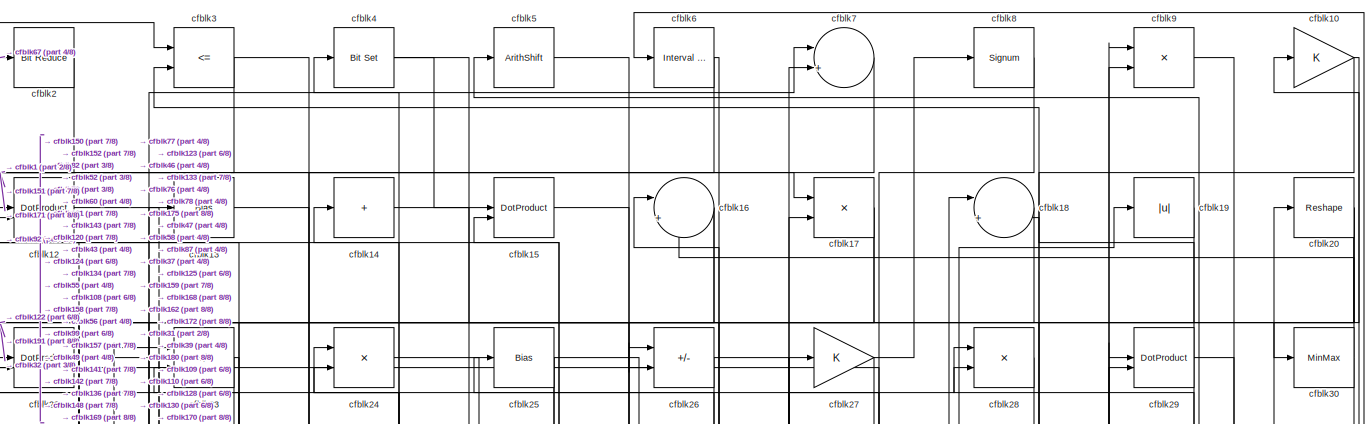
[diagram: root canvas - part 1/8, full width, top band]
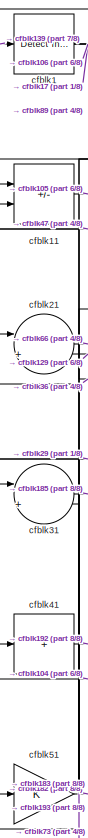
[diagram: root canvas - part 2/8, top left region]
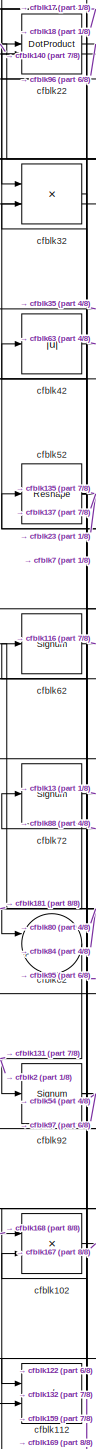
[diagram: root canvas - part 3/8, middle left region]
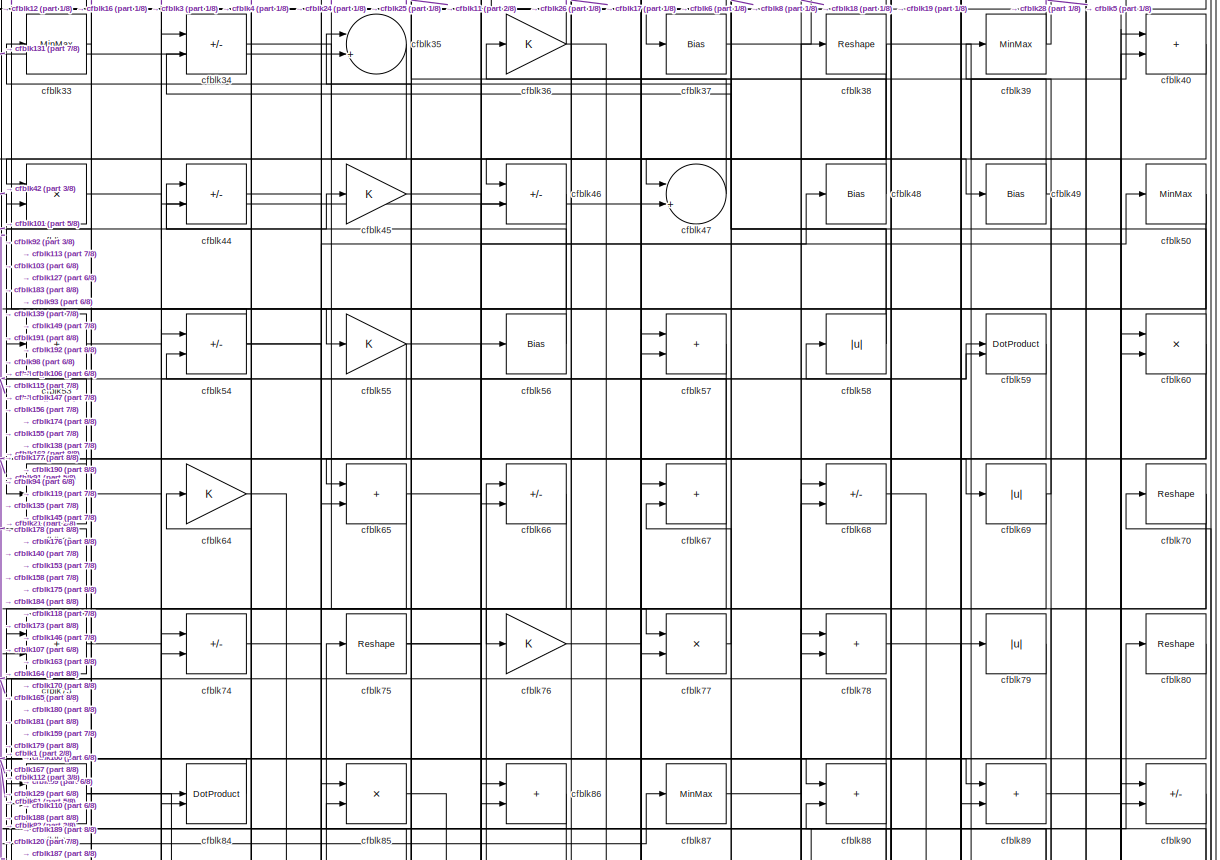
[diagram: root canvas - part 4/8, full width, top band]
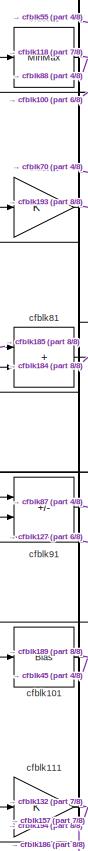
[diagram: root canvas - part 5/8, middle left region]
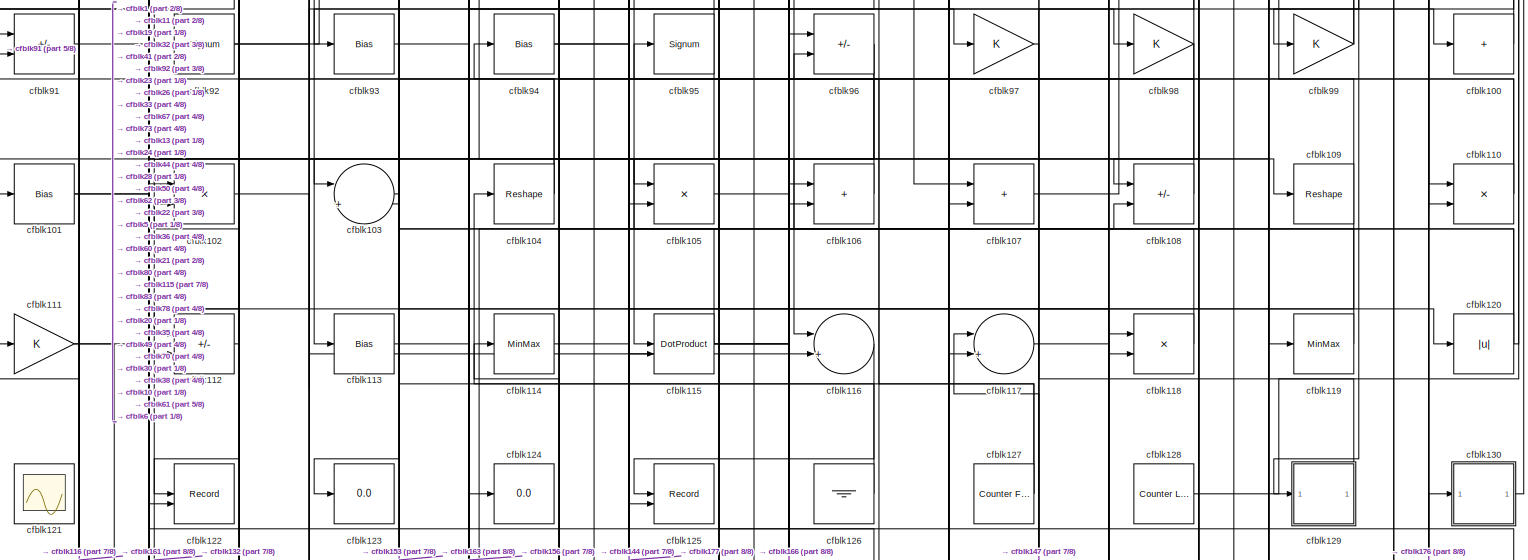
[diagram: root canvas - part 6/8, full width, middle band]
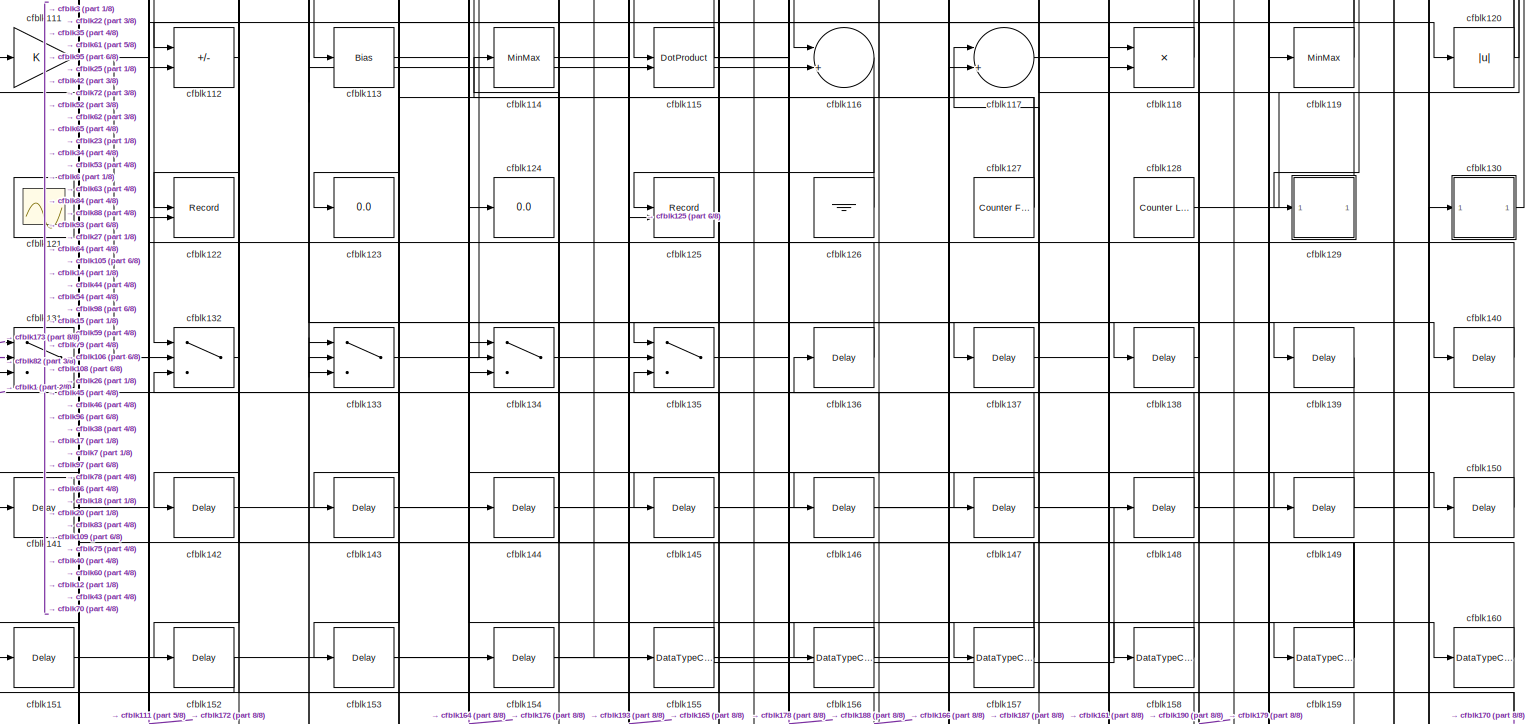
[diagram: root canvas - part 7/8, full width, bottom band]
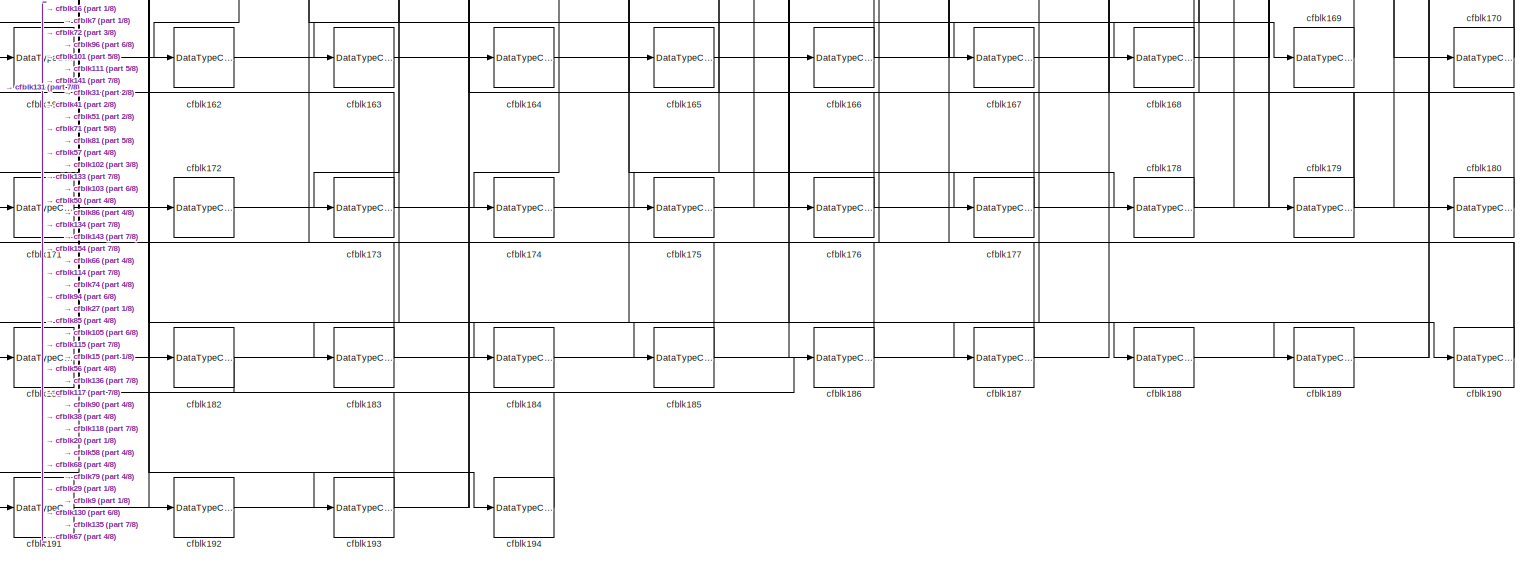
[diagram: root canvas - part 8/8, full width, bottom band]
MODEL slx_b08c2aa2a945
KIND model
CONFIG AbsTol = auto
CONFIG EnableMultiTasking = off
CONFIG FixedStep = auto
CONFIG MaxStep = auto
CONFIG MinStep = auto
CONFIG RelTol = 1e-3
CONFIG SampleTimeConstraint = Unconstrained
CONFIG SolverName = VariableStepAuto
CONFIG StartTime = 0.0
CONFIG StopTime = 10.0
BLOCK [Reference] cfblk1  REF=simulink/Logic and Bit
Operations/Detect
Increase
  LibrarySourceBlock = hdlsllib/Logic and Bit\nOperations/Detect\nIncrease
  SourceBlock = simulink/Logic and Bit\nOperations/Detect\nIncrease
  SourceType = Detect Increase
BLOCK [Gain] cfblk10
BLOCK [Sum] cfblk100
  IconShape = rectangular
  Inputs = +
BLOCK [Bias] cfblk101
  Bias = 0.0
  SaturateOnIntegerOverflow = off
BLOCK [Product] cfblk102
  Inputs = */
  RndMeth = Zero
  SaturateOnIntegerOverflow = on
BLOCK [Sum] cfblk103
  Inputs = |++
BLOCK [Reshape] cfblk104
BLOCK [Product] cfblk105
  Inputs = */
  RndMeth = Zero
  SaturateOnIntegerOverflow = on
BLOCK [Sum] cfblk106
  IconShape = rectangular
BLOCK [Sum] cfblk107
  IconShape = rectangular
BLOCK [Sum] cfblk108
  IconShape = rectangular
  Inputs = +-
BLOCK [Reshape] cfblk109
BLOCK [Sum] cfblk11
  IconShape = rectangular
  Inputs = +-
BLOCK [Product] cfblk110
  Inputs = */
  RndMeth = Zero
  SaturateOnIntegerOverflow = on
BLOCK [Gain] cfblk111
BLOCK [Sum] cfblk112
  IconShape = rectangular
  Inputs = +-
BLOCK [Bias] cfblk113
  Bias = 0.0
  SaturateOnIntegerOverflow = off
BLOCK [MinMax] cfblk114
BLOCK [DotProduct] cfblk115
  OutDataTypeStr = Inherit: Inherit via internal rule
BLOCK [Sum] cfblk116
  Inputs = |++
BLOCK [Sum] cfblk117
  Inputs = |++
BLOCK [Product] cfblk118
  Inputs = */
  RndMeth = Zero
  SaturateOnIntegerOverflow = on
BLOCK [MinMax] cfblk119
BLOCK [DotProduct] cfblk12
  OutDataTypeStr = Inherit: Inherit via internal rule
BLOCK [Abs] cfblk120
  SaturateOnIntegerOverflow = off
BLOCK [Scope] cfblk121
  Floating = on
  NumInputPorts = 1
  ScopeSpecificationString = Simulink.scopes.TimeScopeBlockCfg('CurrentConfiguration', extmgr.ConfigurationSet(extmgr.Configuration('Core','General UI',true,'FigureColor',[0.156862745098039 0.156862745098039 0.156862745098039]),extmgr.Configuration('Core','Source UI',true),extmgr.Configuration('Sources','WiredSimulink',true,'DataLoggingVariableName','ScopeData1','DataLoggingSaveFormat','StructureWithTime','DataLoggingLimitDat...<+2713ch>
BLOCK [Record] cfblk122
  CompatibilityTag = XY
  FileSettingsInternal = {"entries":[{"content":{"excelSettings":{"content":{},"type":"Streamout.ExcelSettings"}},"type":"Streamout.FileSettingStorage","uuid":""}],"packageUris":["http:\/\/schema.mathworks.com\/mf0\/streamout_blocks\/R2020a"],"version":"1.0"}
  Layout = [1 1]
  SignalsInternal = {"entries":[{"content":{"signals":[{"content":{"blockPath":[],"dimensions":[1],"domain":"","lineColor":"#a2142f","plots":[1],"port":1,"signalID":1175,"signalName":"XY Graph:1"},"type":"RecordBlkView.Signal","uuid":""},{"content":{"blockPath":[],"dimensions":[1],"domain":"","lineColor":"#139fff","plots":[1],"port":2,"signalID":1178,"signalName":"XY Graph:2"},"type":"RecordBlkView.Signal","uuid":""}...<+146ch>
  VisualizationBindings = {"xyplotplugin":{"info":[{"series":[{"bindingParametersList":[{"parameter":"X-Axis","signalID":1175,"signalName":"XY Graph:1"},{"parameter":"Y-Axis","signalID":1178,"signalName":"XY Graph:2"}],"seriesID":46251}],"subplotID":1}]}}
  st = -1
BLOCK [Display] cfblk123
  Decimation = 1
BLOCK [Display] cfblk124
  Decimation = 1
BLOCK [Record] cfblk125
  CompatibilityTag = XY
  FileSettingsInternal = {"entries":[{"content":{"excelSettings":{"content":{},"type":"Streamout.ExcelSettings"}},"type":"Streamout.FileSettingStorage","uuid":""}],"packageUris":["http:\/\/schema.mathworks.com\/mf0\/streamout_blocks\/R2020a"],"version":"1.0"}
  Layout = [1 1]
  SignalsInternal = {"entries":[{"content":{"signals":[{"content":{"blockPath":[],"dimensions":[1],"domain":"","lineColor":"#a2142f","plots":[1],"port":1,"signalID":1183,"signalName":"XY Graph:1"},"type":"RecordBlkView.Signal","uuid":""},{"content":{"blockPath":[],"dimensions":[1],"domain":"","lineColor":"#139fff","plots":[1],"port":2,"signalID":1186,"signalName":"XY Graph:2"},"type":"RecordBlkView.Signal","uuid":""}...<+146ch>
  VisualizationBindings = {"xyplotplugin":{"info":[{"series":[{"bindingParametersList":[{"parameter":"X-Axis","signalID":1183,"signalName":"XY Graph:1"},{"parameter":"Y-Axis","signalID":1186,"signalName":"XY Graph:2"}],"seriesID":58959}],"subplotID":1}]}}
  st = -1
BLOCK [Ground] cfblk126
BLOCK [Reference] cfblk127  REF=hdlsllib/Sources/Counter
Free-Running
  SourceBlock = hdlsllib/Sources/Counter\nFree-Running
  SourceType = Counter Free-Running
BLOCK [Reference] cfblk128  REF=hdlsllib/Sources/Counter
Limited
  SourceBlock = hdlsllib/Sources/Counter\nLimited
  SourceType = Counter Limited
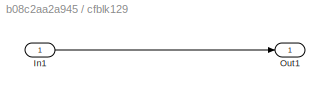
BLOCK [SubSystem] cfblk129
  LibrarySourceBlock = hdlsllib/Ports &\nSubsystems/Subsystem
BLOCK [Inport] cfblk129/In1
BLOCK [Outport] cfblk129/Out1
BLOCK [Bias] cfblk13
  Bias = 0.0
  SaturateOnIntegerOverflow = off
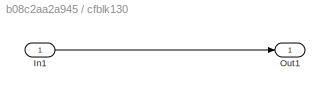
BLOCK [SubSystem] cfblk130
  LibrarySourceBlock = hdlsllib/Ports &\nSubsystems/Subsystem
BLOCK [Inport] cfblk130/In1
BLOCK [Outport] cfblk130/Out1
BLOCK [Switch] cfblk131
  InputSameDT = off
  SaturateOnIntegerOverflow = off
BLOCK [Switch] cfblk132
  InputSameDT = off
  SaturateOnIntegerOverflow = off
BLOCK [Switch] cfblk133
  InputSameDT = off
  SaturateOnIntegerOverflow = off
BLOCK [Switch] cfblk134
  InputSameDT = off
  SaturateOnIntegerOverflow = off
BLOCK [Switch] cfblk135
  InputSameDT = off
  SaturateOnIntegerOverflow = off
BLOCK [Delay] cfblk136
  InputPortMap = u0
  SampleTime = 1
BLOCK [Delay] cfblk137
  InputPortMap = u0
  SampleTime = 1
BLOCK [Delay] cfblk138
  InputPortMap = u0
  SampleTime = 1
BLOCK [Delay] cfblk139
  InputPortMap = u0
  SampleTime = 1
BLOCK [Sum] cfblk14
  IconShape = rectangular
  Inputs = +
BLOCK [Delay] cfblk140
  InputPortMap = u0
  SampleTime = 1
BLOCK [Delay] cfblk141
  InputPortMap = u0
  SampleTime = 1
BLOCK [Delay] cfblk142
  InputPortMap = u0
  SampleTime = 1
BLOCK [Delay] cfblk143
  InputPortMap = u0
  SampleTime = 1
BLOCK [Delay] cfblk144
  InputPortMap = u0
  SampleTime = 1
BLOCK [Delay] cfblk145
  InputPortMap = u0
  SampleTime = 1
BLOCK [Delay] cfblk146
  InputPortMap = u0
  SampleTime = 1
BLOCK [Delay] cfblk147
  InputPortMap = u0
  SampleTime = 1
BLOCK [Delay] cfblk148
  InputPortMap = u0
  SampleTime = 1
BLOCK [Delay] cfblk149
  InputPortMap = u0
  SampleTime = 1
BLOCK [DotProduct] cfblk15
  OutDataTypeStr = Inherit: Inherit via internal rule
BLOCK [Delay] cfblk150
  InputPortMap = u0
  SampleTime = 1
BLOCK [Delay] cfblk151
  InputPortMap = u0
  SampleTime = 1
BLOCK [Delay] cfblk152
  InputPortMap = u0
  SampleTime = 1
BLOCK [Delay] cfblk153
  InputPortMap = u0
  SampleTime = 1
BLOCK [Delay] cfblk154
  InputPortMap = u0
  SampleTime = 1
BLOCK [DataTypeConversion] cfblk155
  RndMeth = Floor
  SaturateOnIntegerOverflow = off
BLOCK [DataTypeConversion] cfblk156
  OutDataTypeStr = uint8
  RndMeth = Floor
  SaturateOnIntegerOverflow = off
BLOCK [DataTypeConversion] cfblk157
  RndMeth = Floor
  SaturateOnIntegerOverflow = off
BLOCK [DataTypeConversion] cfblk158
  OutDataTypeStr = uint8
  RndMeth = Floor
  SaturateOnIntegerOverflow = off
BLOCK [DataTypeConversion] cfblk159
  RndMeth = Floor
  SaturateOnIntegerOverflow = off
BLOCK [Sum] cfblk16
  Inputs = |++
BLOCK [DataTypeConversion] cfblk160
  OutDataTypeStr = uint8
  RndMeth = Floor
  SaturateOnIntegerOverflow = off
BLOCK [DataTypeConversion] cfblk161
  OutDataTypeStr = uint8
  RndMeth = Floor
  SaturateOnIntegerOverflow = off
BLOCK [DataTypeConversion] cfblk162
  RndMeth = Floor
  SaturateOnIntegerOverflow = off
BLOCK [DataTypeConversion] cfblk163
  OutDataTypeStr = uint8
  RndMeth = Floor
  SaturateOnIntegerOverflow = off
BLOCK [DataTypeConversion] cfblk164
  OutDataTypeStr = uint8
  RndMeth = Floor
  SaturateOnIntegerOverflow = off
BLOCK [DataTypeConversion] cfblk165
  OutDataTypeStr = uint8
  RndMeth = Floor
  SaturateOnIntegerOverflow = off
BLOCK [DataTypeConversion] cfblk166
  OutDataTypeStr = uint8
  RndMeth = Floor
  SaturateOnIntegerOverflow = off
BLOCK [DataTypeConversion] cfblk167
  OutDataTypeStr = uint8
  RndMeth = Floor
  SaturateOnIntegerOverflow = off
BLOCK [DataTypeConversion] cfblk168
  OutDataTypeStr = uint8
  RndMeth = Floor
  SaturateOnIntegerOverflow = off
BLOCK [DataTypeConversion] cfblk169
  OutDataTypeStr = uint8
  RndMeth = Floor
  SaturateOnIntegerOverflow = off
BLOCK [Product] cfblk17
  Inputs = */
  RndMeth = Zero
  SaturateOnIntegerOverflow = on
BLOCK [DataTypeConversion] cfblk170
  RndMeth = Floor
  SaturateOnIntegerOverflow = off
BLOCK [DataTypeConversion] cfblk171
  OutDataTypeStr = uint8
  RndMeth = Floor
  SaturateOnIntegerOverflow = off
BLOCK [DataTypeConversion] cfblk172
  OutDataTypeStr = uint8
  RndMeth = Floor
  SaturateOnIntegerOverflow = off
BLOCK [DataTypeConversion] cfblk173
  OutDataTypeStr = uint8
  RndMeth = Floor
  SaturateOnIntegerOverflow = off
BLOCK [DataTypeConversion] cfblk174
  OutDataTypeStr = uint8
  RndMeth = Floor
  SaturateOnIntegerOverflow = off
BLOCK [DataTypeConversion] cfblk175
  OutDataTypeStr = uint8
  RndMeth = Floor
  SaturateOnIntegerOverflow = off
BLOCK [DataTypeConversion] cfblk176
  RndMeth = Floor
  SaturateOnIntegerOverflow = off
BLOCK [DataTypeConversion] cfblk177
  OutDataTypeStr = uint8
  RndMeth = Floor
  SaturateOnIntegerOverflow = off
BLOCK [DataTypeConversion] cfblk178
  OutDataTypeStr = uint8
  RndMeth = Floor
  SaturateOnIntegerOverflow = off
BLOCK [DataTypeConversion] cfblk179
  RndMeth = Floor
  SaturateOnIntegerOverflow = off
BLOCK [Sum] cfblk18
  Inputs = |++
BLOCK [DataTypeConversion] cfblk180
  OutDataTypeStr = uint8
  RndMeth = Floor
  SaturateOnIntegerOverflow = off
BLOCK [DataTypeConversion] cfblk181
  OutDataTypeStr = uint8
  RndMeth = Floor
  SaturateOnIntegerOverflow = off
BLOCK [DataTypeConversion] cfblk182
  OutDataTypeStr = uint8
  RndMeth = Floor
  SaturateOnIntegerOverflow = off
BLOCK [DataTypeConversion] cfblk183
  OutDataTypeStr = uint8
  RndMeth = Floor
  SaturateOnIntegerOverflow = off
BLOCK [DataTypeConversion] cfblk184
  OutDataTypeStr = uint8
  RndMeth = Floor
  SaturateOnIntegerOverflow = off
BLOCK [DataTypeConversion] cfblk185
  OutDataTypeStr = uint8
  RndMeth = Floor
  SaturateOnIntegerOverflow = off
BLOCK [DataTypeConversion] cfblk186
  OutDataTypeStr = uint8
  RndMeth = Floor
  SaturateOnIntegerOverflow = off
BLOCK [DataTypeConversion] cfblk187
  OutDataTypeStr = uint8
  RndMeth = Floor
  SaturateOnIntegerOverflow = off
BLOCK [DataTypeConversion] cfblk188
  OutDataTypeStr = uint8
  RndMeth = Floor
  SaturateOnIntegerOverflow = off
BLOCK [DataTypeConversion] cfblk189
  OutDataTypeStr = uint8
  RndMeth = Floor
  SaturateOnIntegerOverflow = off
BLOCK [Abs] cfblk19
  SaturateOnIntegerOverflow = off
BLOCK [DataTypeConversion] cfblk190
  RndMeth = Floor
  SaturateOnIntegerOverflow = off
BLOCK [DataTypeConversion] cfblk191
  OutDataTypeStr = uint8
  RndMeth = Floor
  SaturateOnIntegerOverflow = off
BLOCK [DataTypeConversion] cfblk192
  OutDataTypeStr = uint8
  RndMeth = Floor
  SaturateOnIntegerOverflow = off
BLOCK [DataTypeConversion] cfblk193
  RndMeth = Floor
  SaturateOnIntegerOverflow = off
BLOCK [DataTypeConversion] cfblk194
  OutDataTypeStr = uint8
  RndMeth = Floor
  SaturateOnIntegerOverflow = off
BLOCK [Reference] cfblk2  REF=hdlsllib/Logic and Bit
Operations/Bit Reduce
  SourceBlock = hdlsllib/Logic and Bit\nOperations/Bit Reduce
  SourceType = Bit Reduce
BLOCK [Reshape] cfblk20
BLOCK [Sum] cfblk21
  Inputs = |++
BLOCK [DotProduct] cfblk22
  OutDataTypeStr = Inherit: Inherit via internal rule
BLOCK [Sum] cfblk23
  IconShape = rectangular
  Inputs = +-
BLOCK [Product] cfblk24
  Inputs = */
  RndMeth = Zero
  SaturateOnIntegerOverflow = on
BLOCK [Bias] cfblk25
  Bias = 0.0
  SaturateOnIntegerOverflow = off
BLOCK [Sum] cfblk26
  IconShape = rectangular
  Inputs = +-
BLOCK [Gain] cfblk27
BLOCK [Product] cfblk28
  Inputs = */
  RndMeth = Zero
  SaturateOnIntegerOverflow = on
BLOCK [DotProduct] cfblk29
  OutDataTypeStr = Inherit: Inherit via internal rule
BLOCK [RelationalOperator] cfblk3
  InputSameDT = off
  Operator = <=
  OutDataTypeStr = boolean
BLOCK [MinMax] cfblk30
BLOCK [Sum] cfblk31
  Inputs = |++
BLOCK [Product] cfblk32
  Inputs = */
  RndMeth = Zero
  SaturateOnIntegerOverflow = on
BLOCK [MinMax] cfblk33
BLOCK [Sum] cfblk34
  IconShape = rectangular
  Inputs = +-
BLOCK [Sum] cfblk35
  Inputs = |++
BLOCK [Gain] cfblk36
BLOCK [Bias] cfblk37
  Bias = 0.0
  SaturateOnIntegerOverflow = off
BLOCK [Reshape] cfblk38
BLOCK [MinMax] cfblk39
BLOCK [Reference] cfblk4  REF=simulink/Logic and Bit
Operations/Bit Set
  LibrarySourceBlock = hdlsllib/Logic and Bit\nOperations/Bit Set
  SourceBlock = simulink/Logic and Bit\nOperations/Bit Set
  SourceType = Bit Set
BLOCK [Sum] cfblk40
  IconShape = rectangular
BLOCK [Sum] cfblk41
  IconShape = rectangular
  Inputs = +
BLOCK [Abs] cfblk42
  SaturateOnIntegerOverflow = off
BLOCK [Product] cfblk43
  Inputs = */
  RndMeth = Zero
  SaturateOnIntegerOverflow = on
BLOCK [Sum] cfblk44
  IconShape = rectangular
  Inputs = +-
BLOCK [Gain] cfblk45
BLOCK [Sum] cfblk46
  IconShape = rectangular
  Inputs = +-
BLOCK [Sum] cfblk47
  Inputs = |++
BLOCK [Bias] cfblk48
  Bias = 0.0
  SaturateOnIntegerOverflow = off
BLOCK [Bias] cfblk49
  Bias = 0.0
  SaturateOnIntegerOverflow = off
BLOCK [ArithShift] cfblk5
  BitShiftNumber = 8
  InputPortMap = u0
BLOCK [MinMax] cfblk50
BLOCK [Gain] cfblk51
BLOCK [Reshape] cfblk52
BLOCK [Sum] cfblk53
  IconShape = rectangular
  Inputs = +
BLOCK [Sum] cfblk54
  IconShape = rectangular
  Inputs = +-
BLOCK [Gain] cfblk55
BLOCK [Bias] cfblk56
  Bias = 0.0
  SaturateOnIntegerOverflow = off
BLOCK [Sum] cfblk57
  IconShape = rectangular
BLOCK [Abs] cfblk58
  SaturateOnIntegerOverflow = off
BLOCK [DotProduct] cfblk59
  OutDataTypeStr = Inherit: Inherit via internal rule
BLOCK [Reference] cfblk6  REF=hdlsllib/Logic and Bit
Operations/Interval Test
  SourceBlock = hdlsllib/Logic and Bit\nOperations/Interval Test
  SourceType = Interval Test
BLOCK [Product] cfblk60
  Inputs = */
  RndMeth = Zero
  SaturateOnIntegerOverflow = on
BLOCK [MinMax] cfblk61
BLOCK [Signum] cfblk62
BLOCK [Bias] cfblk63
  Bias = 0.0
  SaturateOnIntegerOverflow = off
BLOCK [Gain] cfblk64
BLOCK [Sum] cfblk65
  IconShape = rectangular
BLOCK [Sum] cfblk66
  IconShape = rectangular
  Inputs = +-
BLOCK [Sum] cfblk67
  IconShape = rectangular
BLOCK [Sum] cfblk68
  IconShape = rectangular
  Inputs = +-
BLOCK [Abs] cfblk69
  SaturateOnIntegerOverflow = off
BLOCK [Sum] cfblk7
  Inputs = |++
BLOCK [Reshape] cfblk70
BLOCK [Gain] cfblk71
BLOCK [Signum] cfblk72
BLOCK [Sum] cfblk73
  IconShape = rectangular
BLOCK [Sum] cfblk74
  IconShape = rectangular
  Inputs = +-
BLOCK [Reshape] cfblk75
BLOCK [Gain] cfblk76
BLOCK [Product] cfblk77
  Inputs = */
  RndMeth = Zero
  SaturateOnIntegerOverflow = on
BLOCK [Sum] cfblk78
  IconShape = rectangular
BLOCK [Abs] cfblk79
  SaturateOnIntegerOverflow = off
BLOCK [Signum] cfblk8
BLOCK [Reshape] cfblk80
BLOCK [Sum] cfblk81
  IconShape = rectangular
BLOCK [Sum] cfblk82
  Inputs = |++
BLOCK [Sum] cfblk83
  IconShape = rectangular
BLOCK [DotProduct] cfblk84
  OutDataTypeStr = Inherit: Inherit via internal rule
BLOCK [Product] cfblk85
  Inputs = */
  RndMeth = Zero
  SaturateOnIntegerOverflow = on
BLOCK [Sum] cfblk86
  IconShape = rectangular
BLOCK [MinMax] cfblk87
BLOCK [Sum] cfblk88
  IconShape = rectangular
BLOCK [Sum] cfblk89
  IconShape = rectangular
BLOCK [Product] cfblk9
  Inputs = */
  RndMeth = Zero
  SaturateOnIntegerOverflow = on
BLOCK [Sum] cfblk90
  IconShape = rectangular
  Inputs = +-
BLOCK [Sum] cfblk91
  IconShape = rectangular
  Inputs = +-
BLOCK [Signum] cfblk92
BLOCK [Bias] cfblk93
  Bias = 0.0
  SaturateOnIntegerOverflow = off
BLOCK [Bias] cfblk94
  Bias = 0.0
  SaturateOnIntegerOverflow = off
BLOCK [Signum] cfblk95
BLOCK [Sum] cfblk96
  IconShape = rectangular
  Inputs = +-
BLOCK [Gain] cfblk97
BLOCK [Gain] cfblk98
BLOCK [Gain] cfblk99
LINE cfblk100:1 -> cfblk61:1
NET cfblk101:1 -> cfblk189:1, cfblk45:1
LINE cfblk102:1 -> cfblk167:1
LINE cfblk103:1 -> cfblk163:1
NET cfblk104:1 -> cfblk41:1, cfblk94:1
LINE cfblk105:1 -> cfblk166:1
LINE cfblk106:1 -> cfblk44:1
LINE cfblk107:1 -> cfblk80:1
LINE cfblk108:1 -> cfblk24:1
NET cfblk109:1 -> cfblk153:1, cfblk20:1
NET cfblk10:1 -> cfblk108:1, cfblk30:1
NET cfblk110:1 -> cfblk23:2, cfblk95:1
NET cfblk111:1 -> cfblk132:2, cfblk194:1
LINE cfblk112:1 -> cfblk32:2
LINE cfblk113:1 -> cfblk144:1
LINE cfblk114:1 -> cfblk165:1
NET cfblk115:1 -> cfblk106:1, cfblk108:2, cfblk178:1, cfblk54:2
LINE cfblk116:1 -> cfblk125:1
LINE cfblk117:1 -> cfblk159:1
LINE cfblk118:1 -> cfblk66:1
LINE cfblk119:1 -> cfblk75:1
LINE cfblk11:1 -> cfblk105:1
NET cfblk120:1 -> cfblk12:1, cfblk43:2, cfblk70:1
LINE cfblk126:1 -> cfblk104:1
NET cfblk127:1 -> cfblk73:1, cfblk91:2
LINE cfblk128:1 -> cfblk10:1
LINE cfblk129/In1:1 -> cfblk129/Out1:1
LINE cfblk129:1 -> cfblk21:2
LINE cfblk12:1 -> cfblk60:2
LINE cfblk130/In1:1 -> cfblk130/Out1:1
LINE cfblk130:1 -> cfblk6:1
LINE cfblk131:1 -> cfblk35:2
LINE cfblk132:1 -> cfblk72:1
LINE cfblk133:1 -> cfblk27:1
LINE cfblk134:1 -> cfblk150:1
LINE cfblk135:1 -> cfblk188:1
LINE cfblk136:1 -> cfblk15:2
LINE cfblk137:1 -> cfblk160:1
LINE cfblk138:1 -> cfblk88:2
LINE cfblk139:1 -> cfblk1:1
LINE cfblk13:1 -> cfblk124:1
LINE cfblk140:1 -> cfblk22:1
LINE cfblk141:1 -> cfblk172:1
LINE cfblk142:1 -> cfblk7:2
LINE cfblk143:1 -> cfblk164:1
LINE cfblk144:1 -> cfblk105:2
LINE cfblk145:1 -> cfblk60:1
LINE cfblk146:1 -> cfblk40:2
LINE cfblk147:1 -> cfblk44:2
LINE cfblk148:1 -> cfblk26:1
LINE cfblk149:1 -> cfblk78:1
LINE cfblk14:1 -> cfblk157:1
LINE cfblk150:1 -> cfblk12:2
LINE cfblk151:1 -> cfblk17:2
LINE cfblk152:1 -> cfblk3:1
LINE cfblk153:1 -> cfblk46:2
LINE cfblk154:1 -> cfblk115:2
NET cfblk155:1 -> cfblk148:1, cfblk84:1
LINE cfblk156:1 -> cfblk64:1
NET cfblk157:1 -> cfblk111:1, cfblk132:3
LINE cfblk158:1 -> cfblk14:1
NET cfblk159:1 -> cfblk133:2, cfblk18:2, cfblk34:1, cfblk42:1
LINE cfblk15:1 -> cfblk169:1
LINE cfblk160:1 -> cfblk117:1
LINE cfblk161:1 -> cfblk117:2
NET cfblk162:1 -> cfblk29:1, cfblk29:2
LINE cfblk163:1 -> cfblk57:1
LINE cfblk164:1 -> cfblk57:2
LINE cfblk165:1 -> cfblk38:1
LINE cfblk166:1 -> cfblk114:1
LINE cfblk167:1 -> cfblk79:1
LINE cfblk168:1 -> cfblk102:1
LINE cfblk169:1 -> cfblk102:2
NET cfblk16:1 -> cfblk191:1, cfblk43:1
NET cfblk170:1 -> cfblk135:3, cfblk67:2
LINE cfblk171:1 -> cfblk9:1
LINE cfblk172:1 -> cfblk9:2
LINE cfblk173:1 -> cfblk131:1
LINE cfblk174:1 -> cfblk86:1
LINE cfblk175:1 -> cfblk86:2
NET cfblk176:1 -> cfblk130:1, cfblk134:1
LINE cfblk177:1 -> cfblk85:1
LINE cfblk178:1 -> cfblk85:2
NET cfblk179:1 -> cfblk118:1, cfblk58:1
NET cfblk17:1 -> cfblk32:1, cfblk46:1
LINE cfblk180:1 -> cfblk68:1
LINE cfblk181:1 -> cfblk68:2
LINE cfblk182:1 -> cfblk186:1
LINE cfblk183:1 -> cfblk51:1
LINE cfblk184:1 -> cfblk56:1
LINE cfblk185:1 -> cfblk81:1
LINE cfblk186:1 -> cfblk81:2
LINE cfblk187:1 -> cfblk136:1
LINE cfblk188:1 -> cfblk90:1
LINE cfblk189:1 -> cfblk90:2
LINE cfblk18:1 -> cfblk82:2
NET cfblk190:1 -> cfblk133:1, cfblk67:1
LINE cfblk191:1 -> cfblk74:1
LINE cfblk192:1 -> cfblk74:2
NET cfblk193:1 -> cfblk154:1, cfblk31:2
LINE cfblk194:1 -> cfblk71:1
LINE cfblk19:1 -> cfblk122:2
NET cfblk1:1 -> cfblk106:2, cfblk17:1, cfblk89:2
NET cfblk20:1 -> cfblk133:3, cfblk152:1, cfblk168:1
LINE cfblk21:1 -> cfblk66:2
LINE cfblk22:1 -> cfblk96:1
NET cfblk23:1 -> cfblk131:3, cfblk143:1
LINE cfblk24:1 -> cfblk49:1
NET cfblk25:1 -> cfblk141:1, cfblk142:1, cfblk77:2
NET cfblk26:1 -> cfblk123:1, cfblk78:2
NET cfblk27:1 -> cfblk175:1, cfblk8:1
LINE cfblk28:1 -> cfblk125:2
NET cfblk29:1 -> cfblk180:1, cfblk31:1, cfblk3:2
LINE cfblk2:1 -> cfblk92:1
NET cfblk30:1 -> cfblk110:2, cfblk16:2
LINE cfblk31:1 -> cfblk185:1
LINE cfblk32:1 -> cfblk122:1
LINE cfblk33:1 -> cfblk103:1
LINE cfblk34:1 -> cfblk77:1
LINE cfblk35:1 -> cfblk112:2
NET cfblk36:1 -> cfblk107:1, cfblk11:2
LINE cfblk37:1 -> cfblk19:1
NET cfblk38:1 -> cfblk110:1, cfblk146:1, cfblk65:1
NET cfblk39:1 -> cfblk28:2, cfblk5:1
NET cfblk3:1 -> cfblk151:1, cfblk55:1
LINE cfblk40:1 -> cfblk83:1
LINE cfblk41:1 -> cfblk192:1
LINE cfblk42:1 -> cfblk63:1
LINE cfblk43:1 -> cfblk47:2
LINE cfblk44:1 -> cfblk120:1
LINE cfblk45:1 -> cfblk158:1
LINE cfblk46:1 -> cfblk73:2
LINE cfblk47:1 -> cfblk11:1
LINE cfblk48:1 -> cfblk36:1
NET cfblk49:1 -> cfblk129:1, cfblk16:1
NET cfblk4:1 -> cfblk15:1, cfblk26:2
NET cfblk50:1 -> cfblk183:1, cfblk65:2
LINE cfblk51:1 -> cfblk182:1
NET cfblk52:1 -> cfblk135:2, cfblk137:1, cfblk23:1, cfblk7:1
LINE cfblk53:1 -> cfblk139:1
NET cfblk54:1 -> cfblk138:1, cfblk53:1, cfblk89:1
NET cfblk55:1 -> cfblk69:1, cfblk91:1
LINE cfblk56:1 -> cfblk4:1
LINE cfblk57:1 -> cfblk162:1
NET cfblk58:1 -> cfblk25:1, cfblk34:2
LINE cfblk59:1 -> cfblk145:1
LINE cfblk5:1 -> cfblk109:1
NET cfblk60:1 -> cfblk103:2, cfblk107:2, cfblk33:1
NET cfblk61:1 -> cfblk118:2, cfblk88:1
LINE cfblk62:1 -> cfblk116:2
NET cfblk63:1 -> cfblk149:1, cfblk52:1
LINE cfblk64:1 -> cfblk155:1
NET cfblk65:1 -> cfblk113:1, cfblk59:1
LINE cfblk66:1 -> cfblk174:1
NET cfblk67:1 -> cfblk2:1, cfblk93:1
LINE cfblk68:1 -> cfblk179:1
NET cfblk69:1 -> cfblk39:1, cfblk84:2
NET cfblk6:1 -> cfblk134:2, cfblk76:1
NET cfblk70:1 -> cfblk101:1, cfblk99:1
LINE cfblk71:1 -> cfblk193:1
NET cfblk72:1 -> cfblk13:1, cfblk181:1
NET cfblk73:1 -> cfblk21:1, cfblk98:1
LINE cfblk74:1 -> cfblk190:1
NET cfblk75:1 -> cfblk140:1, cfblk48:1
LINE cfblk76:1 -> cfblk28:1
LINE cfblk77:1 -> cfblk37:1
LINE cfblk78:1 -> cfblk100:1
LINE cfblk79:1 -> cfblk135:1
LINE cfblk7:1 -> cfblk171:1
LINE cfblk80:1 -> cfblk112:1
LINE cfblk81:1 -> cfblk184:1
LINE cfblk82:1 -> cfblk131:2
NET cfblk83:1 -> cfblk119:1, cfblk59:2
LINE cfblk84:1 -> cfblk82:1
LINE cfblk85:1 -> cfblk176:1
LINE cfblk86:1 -> cfblk173:1
LINE cfblk87:1 -> cfblk18:1
NET cfblk88:1 -> cfblk134:3, cfblk22:2
LINE cfblk89:1 -> cfblk40:1
LINE cfblk8:1 -> cfblk47:1
LINE cfblk90:1 -> cfblk187:1
LINE cfblk91:1 -> cfblk87:1
NET cfblk92:1 -> cfblk54:1, cfblk97:1
LINE cfblk93:1 -> cfblk156:1
NET cfblk94:1 -> cfblk177:1, cfblk50:1
NET cfblk95:1 -> cfblk132:1, cfblk62:1
NET cfblk96:1 -> cfblk116:1, cfblk161:1
LINE cfblk97:1 -> cfblk147:1
NET cfblk98:1 -> cfblk115:1, cfblk83:2, cfblk96:2
NET cfblk99:1 -> cfblk24:2, cfblk35:1
LINE cfblk9:1 -> cfblk170:1
note: NET lines group one-source signal fan-out (src -> all destinations, sorted); 1:1 wires keep LINE
